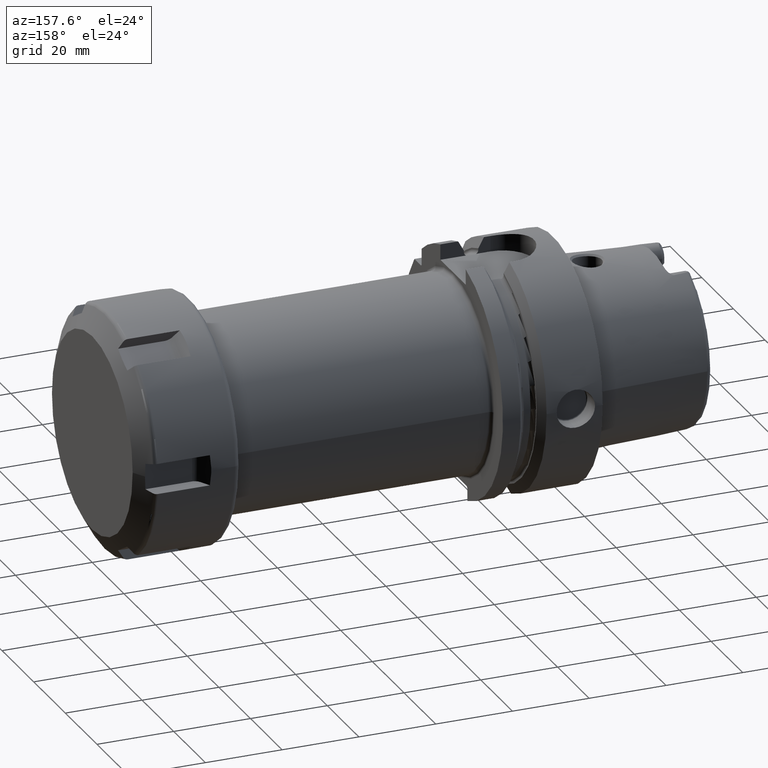
[diagram: clean part render]
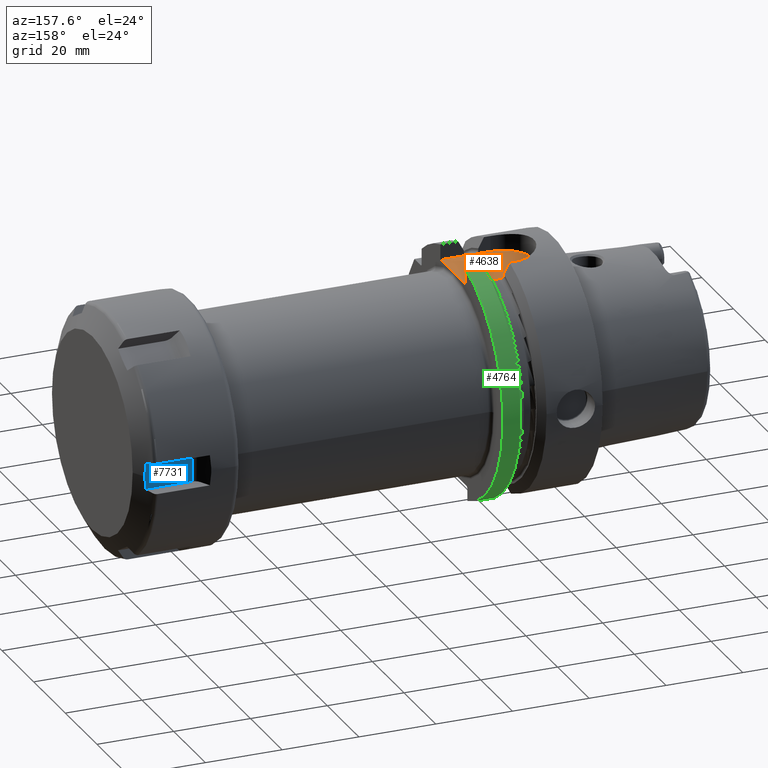
[diagram: same view with three faces highlighted in distinct colors, each labeled with its STEP entity id]
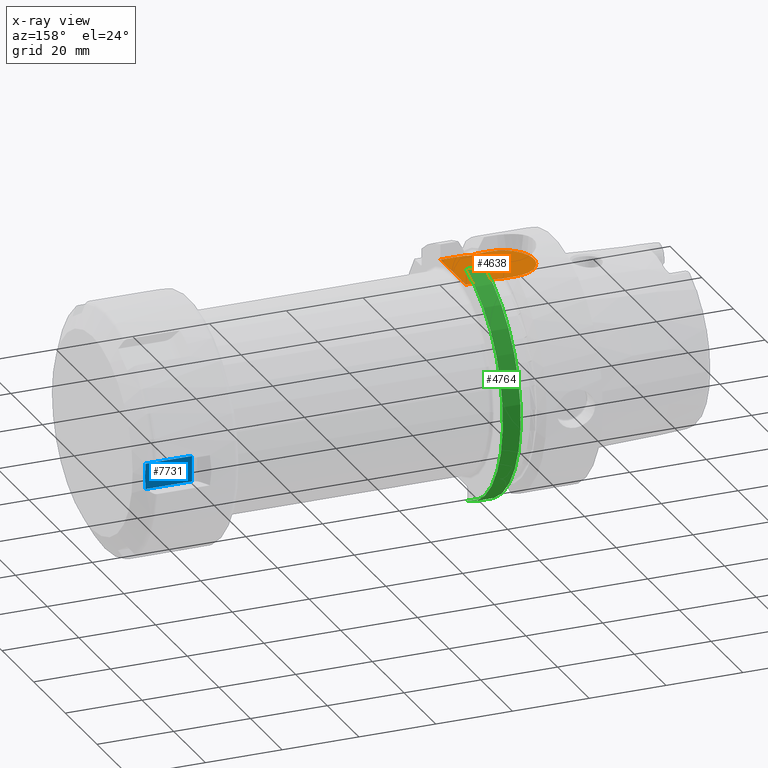
[diagram: x-ray of the same camera — body ghosted, the three highlighted faces saturated]
A machine part, auxiliary view with three faces highlighted in distinct colors.
The next image is the same camera in x-ray (body ghosted, the three faces saturated) — at least one of them is partly hidden behind the body in this view.
Their STEP definitions:

[orange] entity #4638 — the highlighted planar face has unit normal (0, 0, 1).
#1235=CARTESIAN_POINT('',(1.670911310946E1,8.0175E0,2.64E1));
#1236=CARTESIAN_POINT('',(1.673352951994E1,7.979074793464E0,2.64E1));
#1237=CARTESIAN_POINT('',(1.678346969240E1,7.908219856299E0,2.64E1));
#1238=CARTESIAN_POINT('',(1.686140323483E1,7.821166046425E0,2.64E1));
#1239=CARTESIAN_POINT('',(1.694700550698E1,7.751989508750E0,2.64E1));
#1240=CARTESIAN_POINT('',(1.703710106542E1,7.709022207033E0,2.64E1));
#1241=CARTESIAN_POINT('',(1.709569678300E1,7.7E0,2.64E1));
#1242=CARTESIAN_POINT('',(1.7125E1,7.7E0,2.64E1));
#1286=CARTESIAN_POINT('',(1.7125E1,-7.7E0,2.64E1));
#1287=CARTESIAN_POINT('',(1.709801542874E1,-7.7E0,2.64E1));
#1288=CARTESIAN_POINT('',(1.704428225575E1,-7.707480820281E0,2.64E1));
#1289=CARTESIAN_POINT('',(1.696015728326E1,-7.744711750978E0,2.64E1));
#1290=CARTESIAN_POINT('',(1.688520085667E1,-7.800550899081E0,2.64E1));
#1291=CARTESIAN_POINT('',(1.681986238020E1,-7.866117342831E0,2.64E1));
#1292=CARTESIAN_POINT('',(1.676061128616E1,-7.939936204551E0,2.64E1));
#1293=CARTESIAN_POINT('',(1.672578491309E1,-7.991262830607E0,2.64E1));
#1294=CARTESIAN_POINT('',(1.670911310946E1,-8.0175E0,2.64E1));
#1381=CARTESIAN_POINT('',(1.8875E1,7.7E0,2.64E1));
#1382=CARTESIAN_POINT('',(1.890430468861E1,7.7E0,2.64E1));
#1383=CARTESIAN_POINT('',(1.896290280766E1,7.708993215977E0,2.64E1));
#1384=CARTESIAN_POINT('',(1.905331742183E1,7.752198019553E0,2.64E1));
#1385=CARTESIAN_POINT('',(1.913860453300E1,7.821194226188E0,2.64E1));
#1386=CARTESIAN_POINT('',(1.921661446474E1,7.908317855978E0,2.64E1));
#1387=CARTESIAN_POINT('',(1.926649394598E1,7.979111722839E0,2.64E1));
#1388=CARTESIAN_POINT('',(1.929088689054E1,8.0175E0,2.64E1));
#1436=CARTESIAN_POINT('',(1.929088689054E1,-8.0175E0,2.64E1));
#1437=CARTESIAN_POINT('',(1.927417922618E1,-7.991206394948E0,2.64E1));
#1438=CARTESIAN_POINT('',(1.923922993687E1,-7.939709103662E0,2.64E1));
#1439=CARTESIAN_POINT('',(1.917963781936E1,-7.865495822527E0,2.64E1));
#1440=CARTESIAN_POINT('',(1.911354741171E1,-7.799456458601E0,2.64E1));
#1441=CARTESIAN_POINT('',(1.903907332419E1,-7.744292367168E0,2.64E1));
#1442=CARTESIAN_POINT('',(1.895500739860E1,-7.707298016794E0,2.64E1));
#1443=CARTESIAN_POINT('',(1.890171865616E1,-7.7E0,2.64E1));
#1444=CARTESIAN_POINT('',(1.8875E1,-7.7E0,2.64E1));
#1491=DIRECTION('',(1.E0,0.E0,0.E0));
#1492=VECTOR('',#1491,1.75E0);
#1493=CARTESIAN_POINT('',(1.7125E1,-7.7E0,2.64E1));
#1494=LINE('',#1493,#1492);
#1499=DIRECTION('',(1.E0,0.E0,0.E0));
#1500=VECTOR('',#1499,1.75E0);
#1501=CARTESIAN_POINT('',(1.7125E1,7.7E0,2.64E1));
#1502=LINE('',#1501,#1500);
#1508=DIRECTION('',(1.E0,0.E0,0.E0));
#1509=VECTOR('',#1508,3.741613109456E0);
#1510=CARTESIAN_POINT('',(1.29675E1,-8.0175E0,2.64E1));
#1511=LINE('',#1510,#1509);
#1512=CARTESIAN_POINT('',(1.29675E1,0.E0,2.64E1));
#1513=DIRECTION('',(0.E0,0.E0,1.E0));
#1514=DIRECTION('',(0.E0,1.E0,0.E0));
#1515=AXIS2_PLACEMENT_3D('',#1512,#1513,#1514);
#1517=DIRECTION('',(-1.E0,0.E0,0.E0));
#1518=VECTOR('',#1517,3.741613109456E0);
#1519=CARTESIAN_POINT('',(1.670911310946E1,8.0175E0,2.64E1));
#1520=LINE('',#1519,#1518);
#1525=DIRECTION('',(1.E0,0.E0,0.E0));
#1526=VECTOR('',#1525,6.709113109456E0);
#1527=CARTESIAN_POINT('',(1.929088689054E1,-8.0175E0,2.64E1));
#1528=LINE('',#1527,#1526);
#1561=DIRECTION('',(-1.E0,0.E0,0.E0));
#1562=VECTOR('',#1561,6.709113109456E0);
#1563=CARTESIAN_POINT('',(2.6E1,8.0175E0,2.64E1));
#1564=LINE('',#1563,#1562);
#1688=DIRECTION('',(0.E0,1.E0,0.E0));
#1689=VECTOR('',#1688,1.6035E1);
#1690=CARTESIAN_POINT('',(2.6E1,-8.0175E0,2.64E1));
#1691=LINE('',#1690,#1689);
#2879=CARTESIAN_POINT('',(1.29675E1,8.0175E0,2.64E1));
#2880=CARTESIAN_POINT('',(1.29675E1,-8.0175E0,2.64E1));
#2881=VERTEX_POINT('',#2879);
#2882=VERTEX_POINT('',#2880);
#2883=CARTESIAN_POINT('',(1.670911310946E1,-8.0175E0,2.64E1));
#2884=VERTEX_POINT('',#2883);
#2889=CARTESIAN_POINT('',(1.670911310946E1,8.0175E0,2.64E1));
#2890=VERTEX_POINT('',#2889);
#2937=CARTESIAN_POINT('',(1.929088689054E1,-8.0175E0,2.64E1));
#2938=CARTESIAN_POINT('',(2.6E1,-8.0175E0,2.64E1));
#2939=VERTEX_POINT('',#2937);
#2940=VERTEX_POINT('',#2938);
#2941=CARTESIAN_POINT('',(2.6E1,8.0175E0,2.64E1));
#2942=CARTESIAN_POINT('',(1.929088689054E1,8.0175E0,2.64E1));
#2943=VERTEX_POINT('',#2941);
#2944=VERTEX_POINT('',#2942);
#2957=VERTEX_POINT('',#1242);
#2958=VERTEX_POINT('',#1286);
#2959=CARTESIAN_POINT('',(1.8875E1,7.7E0,2.64E1));
#2960=VERTEX_POINT('',#2959);
#2961=CARTESIAN_POINT('',(1.8875E1,-7.7E0,2.64E1));
#2962=VERTEX_POINT('',#2961);
#4613=CARTESIAN_POINT('',(0.E0,0.E0,2.64E1));
#4614=DIRECTION('',(0.E0,0.E0,1.E0));
#4615=DIRECTION('',(1.E0,0.E0,0.E0));
#4616=AXIS2_PLACEMENT_3D('',#4613,#4614,#4615);
#4617=PLANE('',#4616);
#4619=ORIENTED_EDGE('',*,*,#4618,.F.);
#4621=ORIENTED_EDGE('',*,*,#4620,.F.);
#4623=ORIENTED_EDGE('',*,*,#4622,.F.);
#4624=ORIENTED_EDGE('',*,*,#4418,.T.);
#4625=ORIENTED_EDGE('',*,*,#4607,.T.);
#4626=ORIENTED_EDGE('',*,*,#4523,.T.);
#4628=ORIENTED_EDGE('',*,*,#4627,.F.);
#4630=ORIENTED_EDGE('',*,*,#4629,.F.);
#4632=ORIENTED_EDGE('',*,*,#4631,.F.);
#4633=ORIENTED_EDGE('',*,*,#4551,.T.);
#4634=ORIENTED_EDGE('',*,*,#4594,.F.);
#4635=ORIENTED_EDGE('',*,*,#4441,.T.);
#4636=EDGE_LOOP('',(#4619,#4621,#4623,#4624,#4625,#4626,#4628,#4630,#4632,#4633,
#4634,#4635));
#4637=FACE_OUTER_BOUND('',#4636,.F.);
#4638=ADVANCED_FACE('',(#4637),#4617,.T.);
#1243=B_SPLINE_CURVE_WITH_KNOTS('',3,(#1235,#1236,#1237,#1238,#1239,#1240,#1241,
#1242),.UNSPECIFIED.,.F.,.F.,(4,1,1,1,1,4),(0.E0,2.E-1,4.E-1,6.E-1,8.E-1,1.E0),
.UNSPECIFIED.);
#1295=B_SPLINE_CURVE_WITH_KNOTS('',3,(#1286,#1287,#1288,#1289,#1290,#1291,#1292,
#1293,#1294),.UNSPECIFIED.,.F.,.F.,(4,1,1,1,1,1,4),(0.E0,1.666666666667E-1,
3.333333333333E-1,5.E-1,6.666666666667E-1,8.333333333333E-1,1.E0),
.UNSPECIFIED.);
#1389=B_SPLINE_CURVE_WITH_KNOTS('',3,(#1381,#1382,#1383,#1384,#1385,#1386,#1387,
#1388),.UNSPECIFIED.,.F.,.F.,(4,1,1,1,1,4),(0.E0,2.E-1,4.E-1,6.E-1,8.E-1,1.E0),
.UNSPECIFIED.);
#1445=B_SPLINE_CURVE_WITH_KNOTS('',3,(#1436,#1437,#1438,#1439,#1440,#1441,#1442,
#1443,#1444),.UNSPECIFIED.,.F.,.F.,(4,1,1,1,1,1,4),(0.E0,1.666666666667E-1,
3.333333333333E-1,5.E-1,6.666666666667E-1,8.333333333333E-1,1.E0),
.UNSPECIFIED.);
#1516=CIRCLE('',#1515,8.0175E0);
#4418=EDGE_CURVE('',#2890,#2957,#1243,.T.);
#4441=EDGE_CURVE('',#2958,#2884,#1295,.T.);
#4523=EDGE_CURVE('',#2960,#2944,#1389,.T.);
#4551=EDGE_CURVE('',#2939,#2962,#1445,.T.);
#4594=EDGE_CURVE('',#2958,#2962,#1494,.T.);
#4607=EDGE_CURVE('',#2957,#2960,#1502,.T.);
#4618=EDGE_CURVE('',#2882,#2884,#1511,.T.);
#4620=EDGE_CURVE('',#2881,#2882,#1516,.T.);
#4622=EDGE_CURVE('',#2890,#2881,#1520,.T.);
#4627=EDGE_CURVE('',#2943,#2944,#1564,.T.);
#4629=EDGE_CURVE('',#2940,#2943,#1691,.T.);
#4631=EDGE_CURVE('',#2939,#2940,#1528,.T.);

[blue] entity #7731 — the highlighted planar face has unit normal (0, -1, 0).
#6425=CARTESIAN_POINT('',(2.351130782476E1,2.874999999997E1,-3.35E0));
#6426=CARTESIAN_POINT('',(2.353617695757E1,2.874999999997E1,-2.977828809184E0));
#6427=CARTESIAN_POINT('',(2.357773662637E1,2.874999999997E1,-2.233458033279E0));
#6428=CARTESIAN_POINT('',(2.361525848375E1,2.874999999997E1,-1.116817767542E0));
#6429=CARTESIAN_POINT('',(2.362361162515E1,2.874999999997E1,
-3.722872262064E-1));
#6430=CARTESIAN_POINT('',(2.362361162515E1,2.874999999997E1,0.E0));
#6763=CARTESIAN_POINT('',(2.351130782476E1,2.874999999997E1,3.35E0));
#6769=CARTESIAN_POINT('',(2.362361162515E1,2.874999999997E1,0.E0));
#6770=CARTESIAN_POINT('',(2.362361162515E1,2.874999999997E1,3.723033754199E-1));
#6771=CARTESIAN_POINT('',(2.361525781864E1,2.874999999997E1,1.116855572672E0));
#6772=CARTESIAN_POINT('',(2.357773435590E1,2.874999999997E1,2.233506677949E0));
#6773=CARTESIAN_POINT('',(2.353617556265E1,2.874999999997E1,2.977849684408E0));
#6774=CARTESIAN_POINT('',(2.351130782476E1,2.874999999997E1,3.35E0));
#6937=CARTESIAN_POINT('',(1.135837661841E1,2.874999999997E1,-3.35E0));
#6943=DIRECTION('',(-1.E0,0.E0,0.E0));
#6944=VECTOR('',#6943,1.215293120635E1);
#6945=CARTESIAN_POINT('',(2.351130782476E1,2.874999999997E1,-3.35E0));
#6946=LINE('',#6945,#6944);
#6947=DIRECTION('',(0.E0,0.E0,-1.E0));
#6948=VECTOR('',#6947,6.7E0);
#6949=CARTESIAN_POINT('',(1.135837661841E1,2.874999999997E1,3.35E0));
#6950=LINE('',#6949,#6948);
#6951=DIRECTION('',(-1.E0,0.E0,0.E0));
#6952=VECTOR('',#6951,1.215293120635E1);
#6953=CARTESIAN_POINT('',(2.351130782476E1,2.874999999997E1,3.35E0));
#6954=LINE('',#6953,#6952);
#7071=VERTEX_POINT('',#6763);
#7073=VERTEX_POINT('',#6769);
#7074=VERTEX_POINT('',#6425);
#7089=VERTEX_POINT('',#6937);
#7090=CARTESIAN_POINT('',(1.135837661841E1,2.874999999997E1,3.35E0));
#7091=VERTEX_POINT('',#7090);
#7718=CARTESIAN_POINT('',(2.55E1,2.874999999997E1,3.35E0));
#7719=DIRECTION('',(0.E0,-1.E0,0.E0));
#7720=DIRECTION('',(0.E0,0.E0,-1.E0));
#7721=AXIS2_PLACEMENT_3D('',#7718,#7719,#7720);
#7722=PLANE('',#7721);
#7723=ORIENTED_EDGE('',*,*,#7695,.T.);
#7724=ORIENTED_EDGE('',*,*,#7713,.F.);
#7725=ORIENTED_EDGE('',*,*,#7213,.T.);
#7726=ORIENTED_EDGE('',*,*,#7488,.T.);
#7728=ORIENTED_EDGE('',*,*,#7727,.T.);
#7729=EDGE_LOOP('',(#7723,#7724,#7725,#7726,#7728));
#7730=FACE_OUTER_BOUND('',#7729,.F.);
#7731=ADVANCED_FACE('',(#7730),#7722,.F.);
#6431=B_SPLINE_CURVE_WITH_KNOTS('',3,(#6425,#6426,#6427,#6428,#6429,#6430),
.UNSPECIFIED.,.F.,.F.,(4,1,1,4),(0.E0,3.333333333333E-1,6.666666666667E-1,1.E0),
.UNSPECIFIED.);
#6775=B_SPLINE_CURVE_WITH_KNOTS('',3,(#6769,#6770,#6771,#6772,#6773,#6774),
.UNSPECIFIED.,.F.,.F.,(4,1,1,4),(0.E0,3.333333333333E-1,6.666666666667E-1,1.E0),
.UNSPECIFIED.);
#7213=EDGE_CURVE('',#7074,#7073,#6431,.T.);
#7488=EDGE_CURVE('',#7073,#7071,#6775,.T.);
#7695=EDGE_CURVE('',#7091,#7089,#6950,.T.);
#7713=EDGE_CURVE('',#7074,#7089,#6946,.T.);
#7727=EDGE_CURVE('',#7071,#7091,#6954,.T.);

[green] entity #4764 — the highlighted cylindrical surface (partial cylindrical patch) has radius 31.5 mm, axis along (1, 0, 0).
#1324=DIRECTION('',(-1.E0,0.E0,0.E0));
#1325=VECTOR('',#1324,4.622500925241E0);
#1326=CARTESIAN_POINT('',(2.6E1,9.0175E0,-3.018169467989E1));
#1327=LINE('',#1326,#1325);
#1557=DIRECTION('',(1.E0,0.E0,0.E0));
#1558=VECTOR('',#1557,4.622500925241E0);
#1559=CARTESIAN_POINT('',(2.137749907476E1,8.0175E0,3.046259499370E1));
#1560=LINE('',#1559,#1558);
#1565=CARTESIAN_POINT('',(2.6E1,0.E0,0.E0));
#1566=DIRECTION('',(1.E0,0.E0,0.E0));
#1567=DIRECTION('',(0.E0,2.862698412698E-1,-9.581490374568E-1));
#1568=AXIS2_PLACEMENT_3D('',#1565,#1566,#1567);
#1773=CARTESIAN_POINT('',(2.137749907476E1,9.0175E0,-3.018169467989E1));
#1780=CARTESIAN_POINT('',(2.137749907476E1,0.E0,0.E0));
#1781=DIRECTION('',(1.E0,0.E0,0.E0));
#1782=DIRECTION('',(0.E0,2.862698412698E-1,-9.581490374568E-1));
#1783=AXIS2_PLACEMENT_3D('',#1780,#1781,#1782);
#1790=CARTESIAN_POINT('',(2.137749907476E1,8.0175E0,3.046259499370E1));
#2970=VERTEX_POINT('',#1790);
#2999=VERTEX_POINT('',#1773);
#3001=CARTESIAN_POINT('',(2.6E1,9.0175E0,-3.018169467989E1));
#3002=CARTESIAN_POINT('',(2.6E1,8.0175E0,3.046259499370E1));
#3003=VERTEX_POINT('',#3001);
#3004=VERTEX_POINT('',#3002);
#4751=CARTESIAN_POINT('',(-3.49E1,0.E0,0.E0));
#4752=DIRECTION('',(1.E0,0.E0,0.E0));
#4753=DIRECTION('',(0.E0,-1.E0,0.E0));
#4754=AXIS2_PLACEMENT_3D('',#4751,#4752,#4753);
#4755=CYLINDRICAL_SURFACE('',#4754,3.15E1);
#4756=ORIENTED_EDGE('',*,*,#4465,.F.);
#4758=ORIENTED_EDGE('',*,*,#4757,.T.);
#4759=ORIENTED_EDGE('',*,*,#4722,.F.);
#4761=ORIENTED_EDGE('',*,*,#4760,.F.);
#4762=EDGE_LOOP('',(#4756,#4758,#4759,#4761));
#4763=FACE_OUTER_BOUND('',#4762,.F.);
#4764=ADVANCED_FACE('',(#4763),#4755,.T.);
#1569=CIRCLE('',#1568,3.15E1);
#1784=CIRCLE('',#1783,3.15E1);
#4465=EDGE_CURVE('',#3003,#2999,#1327,.T.);
#4722=EDGE_CURVE('',#2970,#3004,#1560,.T.);
#4757=EDGE_CURVE('',#3003,#3004,#1569,.T.);
#4760=EDGE_CURVE('',#2999,#2970,#1784,.T.);